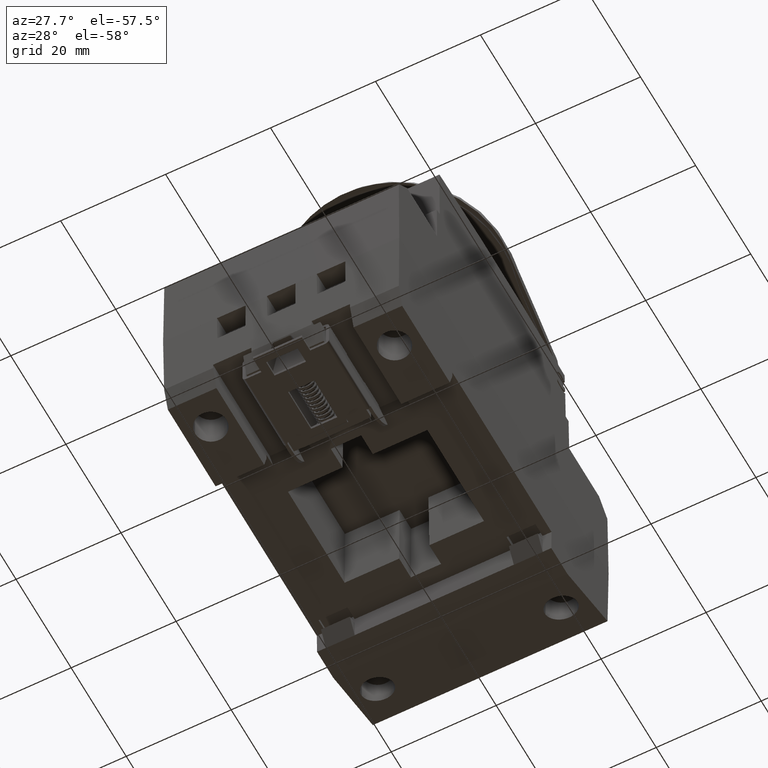
[diagram: clean part render]
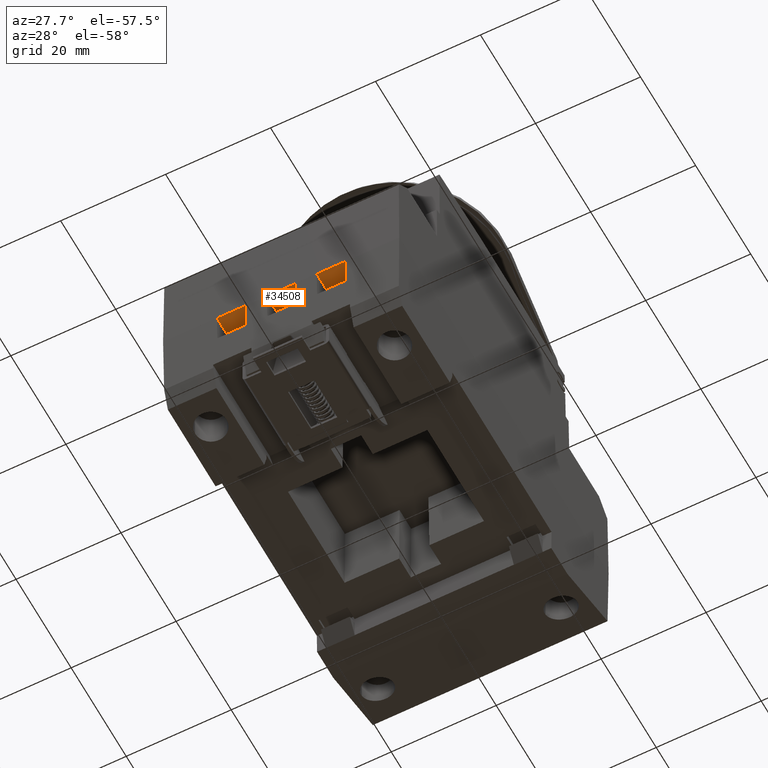
[diagram: same view with one face highlighted and labeled with its STEP entity id]
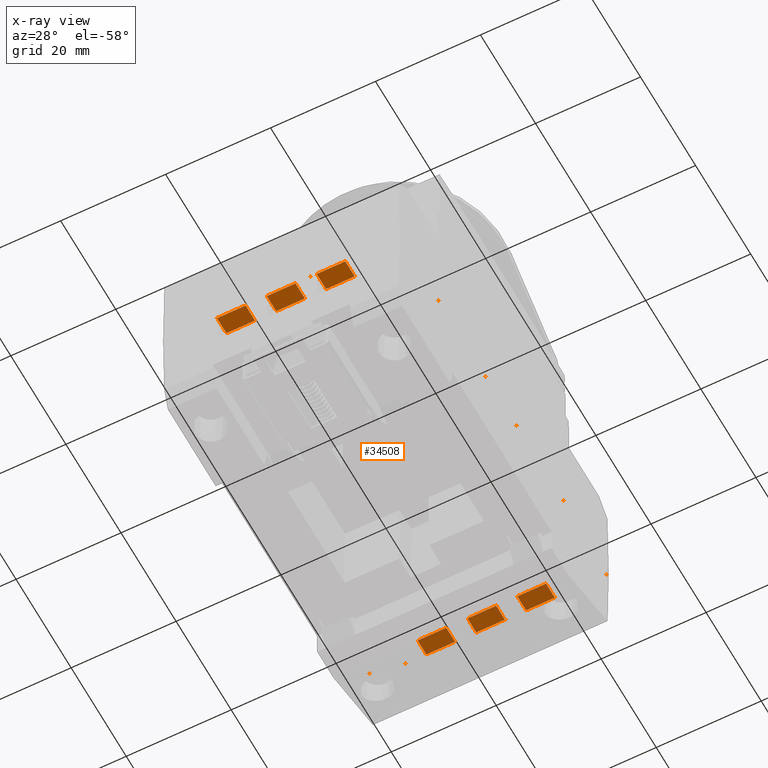
[diagram: x-ray of the same camera — body ghosted, the highlighted face saturated]
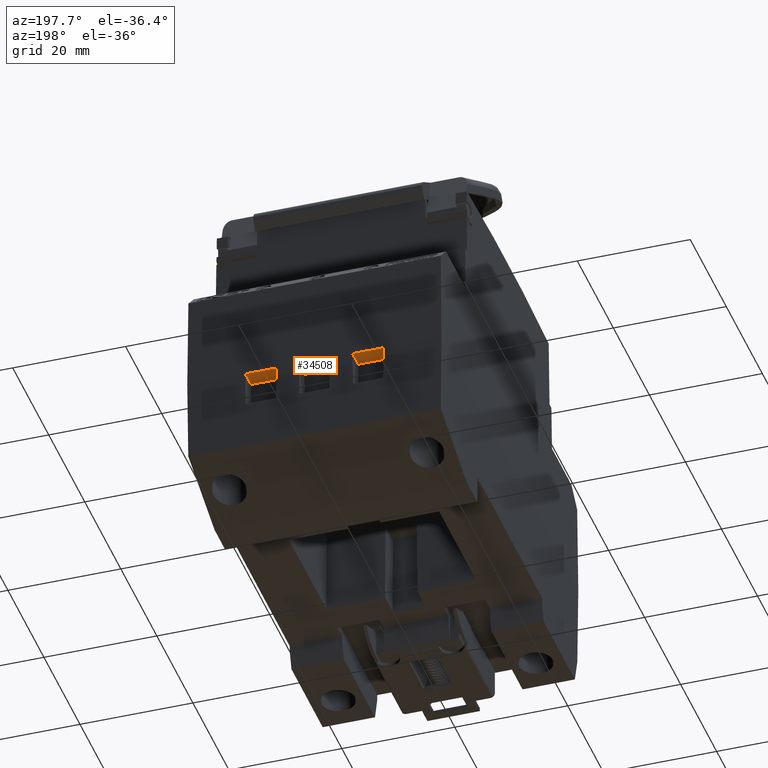
[diagram: same view with one face highlighted and labeled with its STEP entity id]
A machine part, auxiliary view. The second image highlights one B-rep face of the part: STEP entity #34508.
The next image is the same camera in x-ray: the body ghosted, the highlighted face saturated — about 48% of this face is hidden behind the body in this view.
A second angle (auxiliary view) of the same face is appended — the face is thin or edge-on in the first view.
In plain terms, the highlighted planar face has unit normal (0, -0, 1).
Its self-contained STEP definition (entity closure, byte-faithful):
#778 = VECTOR ( 'NONE', #1870, 1000.000000000000000 ) ;
#935 = VECTOR ( 'NONE', #60525, 1000.000000000000000 ) ;
#937 = VECTOR ( 'NONE', #60545, 1000.000000000000000 ) ;
#1784 = LINE ( 'NONE', #1831, #778 ) ;
#1831 = CARTESIAN_POINT ( 'NONE',  ( -22.49758235276976800, 65.75000000000000000, -25.19999999999999600 ) ) ;
#1870 = DIRECTION ( 'NONE',  ( -0.0000000000000000000, -1.000000000000000000, -0.0000000000000000000 ) ) ;
#1946 = CARTESIAN_POINT ( 'NONE',  ( -22.49758235276976800, 65.75000000000000000, -25.19999999999999600 ) ) ;
#1950 = DIRECTION ( 'NONE',  ( -0.0000000000000000000, -1.000000000000000000, -0.0000000000000000000 ) ) ;
#1969 = LINE ( 'NONE', #1946, #3395 ) ;
#2875 = AXIS2_PLACEMENT_3D ( 'NONE', #13933, #13946, #13967 ) ;
#3395 = VECTOR ( 'NONE', #1950, 1000.000000000000000 ) ;
#13918 = FACE_OUTER_BOUND ( 'NONE', #25864, .T. ) ;
#13933 = CARTESIAN_POINT ( 'NONE',  ( -41.75173592734434900, 73.54006473437580400, -25.19999999999999900 ) ) ;
#13946 = DIRECTION ( 'NONE',  ( 0.0000000000000000000, -0.0000000000000000000, 1.000000000000000000 ) ) ;
#13965 = PLANE ( 'NONE',  #2875 ) ;
#13967 = DIRECTION ( 'NONE',  ( 1.000000000000000000, 0.0000000000000000000, -0.0000000000000000000 ) ) ;
#25864 = EDGE_LOOP ( 'NONE', ( #35221, #35264, #35225, #35192, #35164, #35261, #35217, #35240, #35255, #35244, #35265, #35241, #35236, #35170, #35253, #35224, #35232, #35249, #35222, #35158, #35156, #35173, #35227, #35269, #35172, #35228, #35258, #35186, #35191, #35174, #35207, #35250, #35318, #35337 ) ) ;
#28683 = EDGE_CURVE ( 'NONE', #39781, #39754, #56909, .T. ) ;
#28685 = EDGE_CURVE ( 'NONE', #39872, #39789, #56863, .T. ) ;
#28686 = EDGE_CURVE ( 'NONE', #39538, #39758, #56917, .T. ) ;
#28697 = EDGE_CURVE ( 'NONE', #39754, #39872, #56924, .T. ) ;
#28703 = EDGE_CURVE ( 'NONE', #39756, #39797, #56966, .T. ) ;
#28704 = EDGE_CURVE ( 'NONE', #39610, #39609, #56949, .T. ) ;
#28708 = EDGE_CURVE ( 'NONE', #39576, #39601, #56951, .T. ) ;
#28713 = EDGE_CURVE ( 'NONE', #39601, #39593, #57068, .T. ) ;
#28714 = EDGE_CURVE ( 'NONE', #39809, #39756, #57059, .T. ) ;
#28716 = EDGE_CURVE ( 'NONE', #39609, #39562, #57066, .T. ) ;
#28724 = EDGE_CURVE ( 'NONE', #39797, #39831, #57084, .T. ) ;
#28729 = EDGE_CURVE ( 'NONE', #39871, #39752, #57675, .T. ) ;
#28737 = EDGE_CURVE ( 'NONE', #39758, #39617, #59761, .T. ) ;
#28739 = EDGE_CURVE ( 'NONE', #39593, #39585, #59802, .T. ) ;
#28748 = EDGE_CURVE ( 'NONE', #39801, #39770, #59810, .T. ) ;
#28751 = EDGE_CURVE ( 'NONE', #39592, #39590, #59766, .T. ) ;
#28754 = EDGE_CURVE ( 'NONE', #38861, #39781, #59849, .T. ) ;
#28755 = EDGE_CURVE ( 'NONE', #39590, #39604, #59850, .T. ) ;
#28760 = EDGE_CURVE ( 'NONE', #39562, #39544, #59833, .T. ) ;
#28763 = EDGE_CURVE ( 'NONE', #39583, #38896, #59844, .T. ) ;
#28768 = EDGE_CURVE ( 'NONE', #39789, #39801, #59871, .T. ) ;
#28782 = EDGE_CURVE ( 'NONE', #39811, #39809, #59896, .T. ) ;
#28798 = EDGE_CURVE ( 'NONE', #39585, #39610, #60008, .T. ) ;
#28801 = EDGE_CURVE ( 'NONE', #39831, #39871, #60112, .T. ) ;
#28803 = EDGE_CURVE ( 'NONE', #39856, #39811, #60119, .T. ) ;
#28804 = EDGE_CURVE ( 'NONE', #38893, #39592, #60023, .T. ) ;
#28807 = EDGE_CURVE ( 'NONE', #39770, #39856, #60120, .T. ) ;
#28814 = EDGE_CURVE ( 'NONE', #39617, #39576, #60092, .T. ) ;
#28817 = EDGE_CURVE ( 'NONE', #39772, #39538, #60142, .T. ) ;
#28854 = EDGE_CURVE ( 'NONE', #39752, #39772, #60353, .T. ) ;
#28877 = EDGE_CURVE ( 'NONE', #39604, #39583, #60519, .T. ) ;
#28884 = EDGE_CURVE ( 'NONE', #39544, #38869, #60509, .T. ) ;
#31207 = CARTESIAN_POINT ( 'NONE',  ( -2.729761095386848500, -38.04508416149312900, -25.19999999999999900 ) ) ;
#31217 = CARTESIAN_POINT ( 'NONE',  ( -22.49801869615943400, 37.95551707782797000, -25.19999999999999900 ) ) ;
#31219 = CARTESIAN_POINT ( 'NONE',  ( -6.770238904612875300, -34.63843103770614100, -25.19999999999999900 ) ) ;
#31227 = CARTESIAN_POINT ( 'NONE',  ( -22.49801869615933800, -38.04552050488263100, -25.19999999999999900 ) ) ;
#31233 = CARTESIAN_POINT ( 'NONE',  ( 2.729761095387132700, -34.63843103770612000, -25.19999999999999900 ) ) ;
#31265 = CARTESIAN_POINT ( 'NONE',  ( 12.22976109538712600, -34.63843103770610600, -25.19999999999999900 ) ) ;
#31267 = CARTESIAN_POINT ( 'NONE',  ( 22.49801869615922500, 37.95551707782796300, -25.19999999999999900 ) ) ;
#31271 = CARTESIAN_POINT ( 'NONE',  ( -12.22976109538684100, -34.63843103770614800, -25.19999999999999900 ) ) ;
#31281 = CARTESIAN_POINT ( 'NONE',  ( -12.22976109538683800, -38.04508416149312900, -25.19999999999999900 ) ) ;
#31285 = CARTESIAN_POINT ( 'NONE',  ( -6.770238904612875300, -38.04508416149312900, -25.19999999999999900 ) ) ;
#31302 = CARTESIAN_POINT ( 'NONE',  ( 22.49801869615926400, -38.04552050488263100, -25.19999999999999900 ) ) ;
#31309 = CARTESIAN_POINT ( 'NONE',  ( 2.729761095387132700, -38.04508416149312900, -25.19999999999999900 ) ) ;
#31310 = CARTESIAN_POINT ( 'NONE',  ( -2.729761095386848500, -34.63843103770613400, -25.19999999999999900 ) ) ;
#31328 = CARTESIAN_POINT ( 'NONE',  ( 6.770238904613155900, -38.04508416149312900, -25.19999999999999900 ) ) ;
#31447 = CARTESIAN_POINT ( 'NONE',  ( 6.770238904613154100, -34.63843103770612000, -25.19999999999999900 ) ) ;
#31455 = CARTESIAN_POINT ( 'NONE',  ( -12.22976109538694600, 34.79855222929016600, -25.19999999999999900 ) ) ;
#31463 = CARTESIAN_POINT ( 'NONE',  ( -2.729761095386963100, 37.95508073443839000, -25.19999999999999900 ) ) ;
#31468 = CARTESIAN_POINT ( 'NONE',  ( 12.22976109538712700, -38.04508416149312900, -25.19999999999999900 ) ) ;
#31469 = CARTESIAN_POINT ( 'NONE',  ( 6.770238904613049300, 34.79855222929019500, -25.19999999999999900 ) ) ;
#31475 = CARTESIAN_POINT ( 'NONE',  ( 12.22976109538702100, 34.79855222929019500, -25.19999999999999900 ) ) ;
#31481 = CARTESIAN_POINT ( 'NONE',  ( -2.729761095386957300, 34.79855222929018100, -25.19999999999999900 ) ) ;
#31484 = CARTESIAN_POINT ( 'NONE',  ( 22.49758235276980000, -38.04508416149312900, -25.19999999999999900 ) ) ;
#31493 = CARTESIAN_POINT ( 'NONE',  ( -12.22976109538694800, 37.95508073443839000, -25.19999999999999900 ) ) ;
#31501 = CARTESIAN_POINT ( 'NONE',  ( -6.770238904612979200, 37.95508073443839000, -25.19999999999999900 ) ) ;
#31611 = CARTESIAN_POINT ( 'NONE',  ( 6.770238904613046700, 37.95508073443839000, -25.19999999999999900 ) ) ;
#31704 = CARTESIAN_POINT ( 'NONE',  ( 2.729761095387026600, 37.95508073443839000, -25.19999999999999900 ) ) ;
#31987 = CARTESIAN_POINT ( 'NONE',  ( -22.49758235276976500, 37.95508073443839000, -25.19999999999999900 ) ) ;
#32020 = CARTESIAN_POINT ( 'NONE',  ( -22.49780052446459400, 23.97500475979786600, -25.19999999999999200 ) ) ;
#32070 = CARTESIAN_POINT ( 'NONE',  ( -22.49758235276976500, -38.04508416149312900, -25.19999999999999900 ) ) ;
#32080 = CARTESIAN_POINT ( 'NONE',  ( -22.49780052446455900, -23.97500475979861900, -25.19999999999999200 ) ) ;
#33780 = EDGE_CURVE ( 'NONE', #38861, #38896, #1784, .T. ) ;
#33803 = EDGE_CURVE ( 'NONE', #38893, #38869, #1969, .T. ) ;
#34508 = ADVANCED_FACE ( 'NONE', ( #13918 ), #13965, .F. ) ;
#35156 = ORIENTED_EDGE ( 'NONE', *, *, #28714, .F. ) ;
#35158 = ORIENTED_EDGE ( 'NONE', *, *, #28703, .F. ) ;
#35164 = ORIENTED_EDGE ( 'NONE', *, *, #28760, .F. ) ;
#35170 = ORIENTED_EDGE ( 'NONE', *, *, #28686, .F. ) ;
#35172 = ORIENTED_EDGE ( 'NONE', *, *, #28748, .F. ) ;
#35173 = ORIENTED_EDGE ( 'NONE', *, *, #28782, .F. ) ;
#35174 = ORIENTED_EDGE ( 'NONE', *, *, #28754, .F. ) ;
#35186 = ORIENTED_EDGE ( 'NONE', *, *, #28697, .F. ) ;
#35191 = ORIENTED_EDGE ( 'NONE', *, *, #28683, .F. ) ;
#35192 = ORIENTED_EDGE ( 'NONE', *, *, #28884, .F. ) ;
#35207 = ORIENTED_EDGE ( 'NONE', *, *, #33780, .T. ) ;
#35217 = ORIENTED_EDGE ( 'NONE', *, *, #28704, .F. ) ;
#35221 = ORIENTED_EDGE ( 'NONE', *, *, #28751, .F. ) ;
#35222 = ORIENTED_EDGE ( 'NONE', *, *, #28724, .F. ) ;
#35224 = ORIENTED_EDGE ( 'NONE', *, *, #28854, .F. ) ;
#35225 = ORIENTED_EDGE ( 'NONE', *, *, #33803, .T. ) ;
#35227 = ORIENTED_EDGE ( 'NONE', *, *, #28803, .F. ) ;
#35228 = ORIENTED_EDGE ( 'NONE', *, *, #28768, .F. ) ;
#35232 = ORIENTED_EDGE ( 'NONE', *, *, #28729, .F. ) ;
#35236 = ORIENTED_EDGE ( 'NONE', *, *, #28737, .F. ) ;
#35240 = ORIENTED_EDGE ( 'NONE', *, *, #28798, .F. ) ;
#35241 = ORIENTED_EDGE ( 'NONE', *, *, #28814, .F. ) ;
#35244 = ORIENTED_EDGE ( 'NONE', *, *, #28713, .F. ) ;
#35249 = ORIENTED_EDGE ( 'NONE', *, *, #28801, .F. ) ;
#35250 = ORIENTED_EDGE ( 'NONE', *, *, #28763, .F. ) ;
#35253 = ORIENTED_EDGE ( 'NONE', *, *, #28817, .F. ) ;
#35255 = ORIENTED_EDGE ( 'NONE', *, *, #28739, .F. ) ;
#35258 = ORIENTED_EDGE ( 'NONE', *, *, #28685, .F. ) ;
#35261 = ORIENTED_EDGE ( 'NONE', *, *, #28716, .F. ) ;
#35264 = ORIENTED_EDGE ( 'NONE', *, *, #28804, .F. ) ;
#35265 = ORIENTED_EDGE ( 'NONE', *, *, #28708, .F. ) ;
#35269 = ORIENTED_EDGE ( 'NONE', *, *, #28807, .F. ) ;
#35318 = ORIENTED_EDGE ( 'NONE', *, *, #28877, .F. ) ;
#35337 = ORIENTED_EDGE ( 'NONE', *, *, #28755, .F. ) ;
#38861 = VERTEX_POINT ( 'NONE', #31987 ) ;
#38869 = VERTEX_POINT ( 'NONE', #32070 ) ;
#38893 = VERTEX_POINT ( 'NONE', #32080 ) ;
#38896 = VERTEX_POINT ( 'NONE', #32020 ) ;
#39538 = VERTEX_POINT ( 'NONE', #31265 ) ;
#39544 = VERTEX_POINT ( 'NONE', #31281 ) ;
#39562 = VERTEX_POINT ( 'NONE', #31271 ) ;
#39576 = VERTEX_POINT ( 'NONE', #31309 ) ;
#39583 = VERTEX_POINT ( 'NONE', #31217 ) ;
#39585 = VERTEX_POINT ( 'NONE', #31207 ) ;
#39590 = VERTEX_POINT ( 'NONE', #31302 ) ;
#39592 = VERTEX_POINT ( 'NONE', #31227 ) ;
#39593 = VERTEX_POINT ( 'NONE', #31310 ) ;
#39601 = VERTEX_POINT ( 'NONE', #31233 ) ;
#39604 = VERTEX_POINT ( 'NONE', #31267 ) ;
#39609 = VERTEX_POINT ( 'NONE', #31219 ) ;
#39610 = VERTEX_POINT ( 'NONE', #31285 ) ;
#39617 = VERTEX_POINT ( 'NONE', #31328 ) ;
#39752 = VERTEX_POINT ( 'NONE', #31484 ) ;
#39754 = VERTEX_POINT ( 'NONE', #31455 ) ;
#39756 = VERTEX_POINT ( 'NONE', #31469 ) ;
#39758 = VERTEX_POINT ( 'NONE', #31447 ) ;
#39770 = VERTEX_POINT ( 'NONE', #31481 ) ;
#39772 = VERTEX_POINT ( 'NONE', #31468 ) ;
#39781 = VERTEX_POINT ( 'NONE', #31493 ) ;
#39789 = VERTEX_POINT ( 'NONE', #31501 ) ;
#39797 = VERTEX_POINT ( 'NONE', #31475 ) ;
#39801 = VERTEX_POINT ( 'NONE', #31463 ) ;
#39809 = VERTEX_POINT ( 'NONE', #31611 ) ;
#39811 = VERTEX_POINT ( 'NONE', #31704 ) ;
#39831 = VERTEX_POINT ( 'NONE', #40789 ) ;
#39856 = VERTEX_POINT ( 'NONE', #40734 ) ;
#39871 = VERTEX_POINT ( 'NONE', #40708 ) ;
#39872 = VERTEX_POINT ( 'NONE', #40783 ) ;
#40708 = CARTESIAN_POINT ( 'NONE',  ( 22.49758235276980000, 37.95508073443839000, -25.19999999999999900 ) ) ;
#40734 = CARTESIAN_POINT ( 'NONE',  ( 2.729761095387028400, 34.79855222929018800, -25.19999999999999900 ) ) ;
#40783 = CARTESIAN_POINT ( 'NONE',  ( -6.770238904612973000, 34.79855222929016600, -25.19999999999999900 ) ) ;
#40789 = CARTESIAN_POINT ( 'NONE',  ( 12.22976109538702100, 37.95508073443839000, -25.19999999999999900 ) ) ;
#49324 = VECTOR ( 'NONE', #60130, 1000.000000000000000 ) ;
#49329 = VECTOR ( 'NONE', #60116, 1000.000000000000000 ) ;
#49341 = VECTOR ( 'NONE', #59870, 1000.000000000000000 ) ;
#49360 = VECTOR ( 'NONE', #60011, 1000.000000000000000 ) ;
#49367 = VECTOR ( 'NONE', #60090, 1000.000000000000000 ) ;
#49376 = VECTOR ( 'NONE', #59822, 1000.000000000000000 ) ;
#49377 = VECTOR ( 'NONE', #60184, 1000.000000000000000 ) ;
#49382 = VECTOR ( 'NONE', #60114, 1000.000000000000000 ) ;
#49400 = VECTOR ( 'NONE', #60145, 1000.000000000000000 ) ;
#49404 = VECTOR ( 'NONE', #59873, 1000.000000000000000 ) ;
#49468 = VECTOR ( 'NONE', #60360, 1000.000000000000000 ) ;
#49838 = VECTOR ( 'NONE', #59848, 1000.000000000000000 ) ;
#49839 = VECTOR ( 'NONE', #59859, 1000.000000000000000 ) ;
#49841 = VECTOR ( 'NONE', #57037, 1000.000000000000000 ) ;
#49852 = VECTOR ( 'NONE', #57087, 1000.000000000000000 ) ;
#49853 = VECTOR ( 'NONE', #56929, 1000.000000000000000 ) ;
#49856 = VECTOR ( 'NONE', #56948, 1000.000000000000000 ) ;
#49860 = VECTOR ( 'NONE', #56975, 1000.000000000000000 ) ;
#49863 = VECTOR ( 'NONE', #57062, 1000.000000000000000 ) ;
#49865 = VECTOR ( 'NONE', #59800, 1000.000000000000000 ) ;
#49867 = VECTOR ( 'NONE', #56928, 1000.000000000000000 ) ;
#49877 = VECTOR ( 'NONE', #57071, 1000.000000000000000 ) ;
#49878 = VECTOR ( 'NONE', #56601, 1000.000000000000000 ) ;
#49879 = VECTOR ( 'NONE', #56913, 1000.000000000000000 ) ;
#49885 = VECTOR ( 'NONE', #59772, 1000.000000000000000 ) ;
#49887 = VECTOR ( 'NONE', #59819, 1000.000000000000000 ) ;
#49888 = VECTOR ( 'NONE', #57074, 1000.000000000000000 ) ;
#49896 = VECTOR ( 'NONE', #59775, 1000.000000000000000 ) ;
#49898 = VECTOR ( 'NONE', #56942, 1000.000000000000000 ) ;
#49901 = VECTOR ( 'NONE', #59816, 1000.000000000000000 ) ;
#56601 = DIRECTION ( 'NONE',  ( -0.0000000000000000000, -1.000000000000000000, -0.0000000000000000000 ) ) ;
#56645 = CARTESIAN_POINT ( 'NONE',  ( 22.49758235276980000, 73.54006473437580400, -25.19999999999999900 ) ) ;
#56863 = LINE ( 'NONE', #56900, #49879 ) ;
#56893 = CARTESIAN_POINT ( 'NONE',  ( -41.75173592734434900, 34.79855222929016600, -25.19999999999999900 ) ) ;
#56900 = CARTESIAN_POINT ( 'NONE',  ( -6.770238904612973000, 73.54006473437580400, -25.19999999999999900 ) ) ;
#56905 = CARTESIAN_POINT ( 'NONE',  ( -12.22976109538694600, 73.54006473437580400, -25.19999999999999900 ) ) ;
#56909 = LINE ( 'NONE', #56905, #49867 ) ;
#56913 = DIRECTION ( 'NONE',  ( 0.0000000000000000000, 1.000000000000000000, 0.0000000000000000000 ) ) ;
#56917 = LINE ( 'NONE', #56933, #49853 ) ;
#56924 = LINE ( 'NONE', #56893, #49860 ) ;
#56928 = DIRECTION ( 'NONE',  ( -0.0000000000000000000, -1.000000000000000000, -0.0000000000000000000 ) ) ;
#56929 = DIRECTION ( 'NONE',  ( -1.000000000000000000, -0.0000000000000000000, 0.0000000000000000000 ) ) ;
#56933 = CARTESIAN_POINT ( 'NONE',  ( -41.75173592734434900, -34.63843103770609800, -25.19999999999999900 ) ) ;
#56936 = CARTESIAN_POINT ( 'NONE',  ( -41.75173592734434900, 34.79855222929019500, -25.19999999999999900 ) ) ;
#56942 = DIRECTION ( 'NONE',  ( 1.000000000000000000, 0.0000000000000000000, -0.0000000000000000000 ) ) ;
#56946 = CARTESIAN_POINT ( 'NONE',  ( -6.770238904612875300, 73.54006473437580400, -25.19999999999999900 ) ) ;
#56948 = DIRECTION ( 'NONE',  ( 0.0000000000000000000, 1.000000000000000000, 0.0000000000000000000 ) ) ;
#56949 = LINE ( 'NONE', #56946, #49856 ) ;
#56951 = LINE ( 'NONE', #57021, #49841 ) ;
#56966 = LINE ( 'NONE', #56936, #49898 ) ;
#56975 = DIRECTION ( 'NONE',  ( 1.000000000000000000, 0.0000000000000000000, -0.0000000000000000000 ) ) ;
#57021 = CARTESIAN_POINT ( 'NONE',  ( 2.729761095387132700, 73.54006473437580400, -25.19999999999999900 ) ) ;
#57037 = DIRECTION ( 'NONE',  ( 0.0000000000000000000, 1.000000000000000000, 0.0000000000000000000 ) ) ;
#57059 = LINE ( 'NONE', #57085, #49863 ) ;
#57062 = DIRECTION ( 'NONE',  ( -0.0000000000000000000, -1.000000000000000000, -0.0000000000000000000 ) ) ;
#57066 = LINE ( 'NONE', #57067, #49888 ) ;
#57067 = CARTESIAN_POINT ( 'NONE',  ( -41.75173592734434900, -34.63843103770614100, -25.19999999999999900 ) ) ;
#57068 = LINE ( 'NONE', #57070, #49877 ) ;
#57070 = CARTESIAN_POINT ( 'NONE',  ( -41.75173592734434900, -34.63843103770611300, -25.19999999999999900 ) ) ;
#57071 = DIRECTION ( 'NONE',  ( -1.000000000000000000, -0.0000000000000000000, 0.0000000000000000000 ) ) ;
#57074 = DIRECTION ( 'NONE',  ( -1.000000000000000000, -0.0000000000000000000, 0.0000000000000000000 ) ) ;
#57084 = LINE ( 'NONE', #57093, #49852 ) ;
#57085 = CARTESIAN_POINT ( 'NONE',  ( 6.770238904613049300, 73.54006473437580400, -25.19999999999999900 ) ) ;
#57087 = DIRECTION ( 'NONE',  ( 0.0000000000000000000, 1.000000000000000000, 0.0000000000000000000 ) ) ;
#57093 = CARTESIAN_POINT ( 'NONE',  ( 12.22976109538702300, 73.54006473437580400, -25.19999999999999900 ) ) ;
#57675 = LINE ( 'NONE', #56645, #49878 ) ;
#59761 = LINE ( 'NONE', #59808, #49896 ) ;
#59766 = LINE ( 'NONE', #59818, #49838 ) ;
#59768 = CARTESIAN_POINT ( 'NONE',  ( -2.729761095386959500, 73.54006473437580400, -25.19999999999999900 ) ) ;
#59772 = DIRECTION ( 'NONE',  ( -0.0000000000000000000, -1.000000000000000000, -0.0000000000000000000 ) ) ;
#59775 = DIRECTION ( 'NONE',  ( -0.0000000000000000000, -1.000000000000000000, -0.0000000000000000000 ) ) ;
#59785 = CARTESIAN_POINT ( 'NONE',  ( -2.729761095386848500, 73.54006473437580400, -25.19999999999999900 ) ) ;
#59800 = DIRECTION ( 'NONE',  ( -0.0000000000000000000, -1.000000000000000000, -0.0000000000000000000 ) ) ;
#59802 = LINE ( 'NONE', #59785, #49865 ) ;
#59808 = CARTESIAN_POINT ( 'NONE',  ( 6.770238904613153300, 73.54006473437580400, -25.19999999999999900 ) ) ;
#59810 = LINE ( 'NONE', #59768, #49885 ) ;
#59816 = DIRECTION ( 'NONE',  ( -0.0000000000000000000, -1.000000000000000000, -0.0000000000000000000 ) ) ;
#59818 = CARTESIAN_POINT ( 'NONE',  ( -41.75173592734434900, -38.04552050488263100, -25.19999999999999900 ) ) ;
#59819 = DIRECTION ( 'NONE',  ( 1.000000000000000000, 0.0000000000000000000, -0.0000000000000000000 ) ) ;
#59820 = CARTESIAN_POINT ( 'NONE',  ( 22.49801869615926400, 73.54006473437580400, -25.19999999999999900 ) ) ;
#59822 = DIRECTION ( 'NONE',  ( 1.340346296160071700E-015, -1.000000000000000000, -1.169702492042670700E-017 ) ) ;
#59833 = LINE ( 'NONE', #59834, #49901 ) ;
#59834 = CARTESIAN_POINT ( 'NONE',  ( -12.22976109538684000, 73.54006473437580400, -25.19999999999999900 ) ) ;
#59835 = CARTESIAN_POINT ( 'NONE',  ( -22.49801869615942000, 23.94831876901239200, -25.19999999999999900 ) ) ;
#59837 = CARTESIAN_POINT ( 'NONE',  ( -41.75173592734434900, 37.95508073443839000, -25.19999999999999900 ) ) ;
#59844 = LINE ( 'NONE', #59835, #49376 ) ;
#59848 = DIRECTION ( 'NONE',  ( 1.000000000000000000, 0.0000000000000000000, -0.0000000000000000000 ) ) ;
#59849 = LINE ( 'NONE', #59837, #49887 ) ;
#59850 = LINE ( 'NONE', #59820, #49839 ) ;
#59859 = DIRECTION ( 'NONE',  ( 0.0000000000000000000, 1.000000000000000000, 0.0000000000000000000 ) ) ;
#59861 = CARTESIAN_POINT ( 'NONE',  ( -41.75173592734434900, 37.95508073443839000, -25.19999999999999900 ) ) ;
#59870 = DIRECTION ( 'NONE',  ( 1.000000000000000000, 0.0000000000000000000, -0.0000000000000000000 ) ) ;
#59871 = LINE ( 'NONE', #59901, #49404 ) ;
#59873 = DIRECTION ( 'NONE',  ( 1.000000000000000000, 0.0000000000000000000, -0.0000000000000000000 ) ) ;
#59896 = LINE ( 'NONE', #59861, #49341 ) ;
#59901 = CARTESIAN_POINT ( 'NONE',  ( -41.75173592734434900, 37.95508073443839000, -25.19999999999999900 ) ) ;
#59977 = CARTESIAN_POINT ( 'NONE',  ( -41.75173592734434900, -38.04508416149312900, -25.19999999999999900 ) ) ;
#60008 = LINE ( 'NONE', #59977, #49360 ) ;
#60011 = DIRECTION ( 'NONE',  ( -1.000000000000000000, -0.0000000000000000000, 0.0000000000000000000 ) ) ;
#60023 = LINE ( 'NONE', #60111, #49382 ) ;
#60090 = DIRECTION ( 'NONE',  ( 1.000000000000000000, 0.0000000000000000000, -0.0000000000000000000 ) ) ;
#60092 = LINE ( 'NONE', #60160, #49400 ) ;
#60111 = CARTESIAN_POINT ( 'NONE',  ( -22.49801869615942000, 23.94831876901239200, -25.19999999999999900 ) ) ;
#60112 = LINE ( 'NONE', #60131, #49329 ) ;
#60114 = DIRECTION ( 'NONE',  ( 1.340346296160071700E-015, -1.000000000000000000, -1.169702492042670700E-017 ) ) ;
#60116 = DIRECTION ( 'NONE',  ( 1.000000000000000000, 0.0000000000000000000, -0.0000000000000000000 ) ) ;
#60119 = LINE ( 'NONE', #60121, #49324 ) ;
#60120 = LINE ( 'NONE', #60127, #49367 ) ;
#60121 = CARTESIAN_POINT ( 'NONE',  ( 2.729761095387028800, 73.54006473437580400, -25.19999999999999900 ) ) ;
#60127 = CARTESIAN_POINT ( 'NONE',  ( -41.75173592734434900, 34.79855222929018800, -25.19999999999999900 ) ) ;
#60130 = DIRECTION ( 'NONE',  ( 0.0000000000000000000, 1.000000000000000000, 0.0000000000000000000 ) ) ;
#60131 = CARTESIAN_POINT ( 'NONE',  ( -41.75173592734434900, 37.95508073443839000, -25.19999999999999900 ) ) ;
#60142 = LINE ( 'NONE', #60176, #49377 ) ;
#60145 = DIRECTION ( 'NONE',  ( -1.000000000000000000, -0.0000000000000000000, 0.0000000000000000000 ) ) ;
#60160 = CARTESIAN_POINT ( 'NONE',  ( -41.75173592734434900, -38.04508416149312900, -25.19999999999999900 ) ) ;
#60176 = CARTESIAN_POINT ( 'NONE',  ( 12.22976109538712700, 73.54006473437580400, -25.19999999999999900 ) ) ;
#60184 = DIRECTION ( 'NONE',  ( 0.0000000000000000000, 1.000000000000000000, 0.0000000000000000000 ) ) ;
#60353 = LINE ( 'NONE', #60354, #49468 ) ;
#60354 = CARTESIAN_POINT ( 'NONE',  ( -41.75173592734434900, -38.04508416149312900, -25.19999999999999900 ) ) ;
#60360 = DIRECTION ( 'NONE',  ( -1.000000000000000000, -0.0000000000000000000, 0.0000000000000000000 ) ) ;
#60507 = CARTESIAN_POINT ( 'NONE',  ( -41.75173592734434900, 37.95551707782795600, -25.19999999999999900 ) ) ;
#60509 = LINE ( 'NONE', #60553, #935 ) ;
#60519 = LINE ( 'NONE', #60507, #937 ) ;
#60525 = DIRECTION ( 'NONE',  ( -1.000000000000000000, -0.0000000000000000000, 0.0000000000000000000 ) ) ;
#60545 = DIRECTION ( 'NONE',  ( -1.000000000000000000, -0.0000000000000000000, 0.0000000000000000000 ) ) ;
#60553 = CARTESIAN_POINT ( 'NONE',  ( -41.75173592734434900, -38.04508416149312900, -25.19999999999999900 ) ) ;